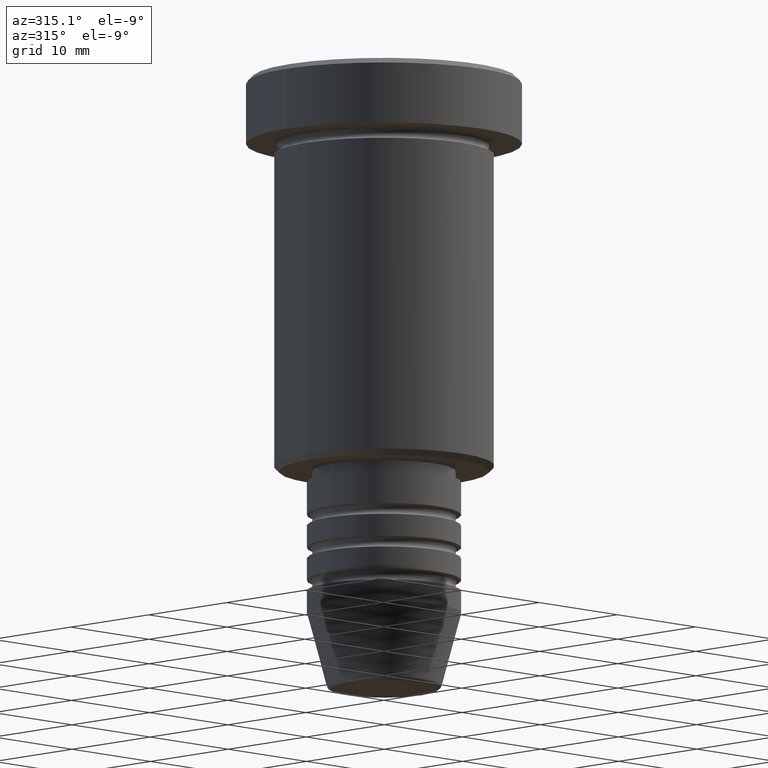
[diagram: clean part render]
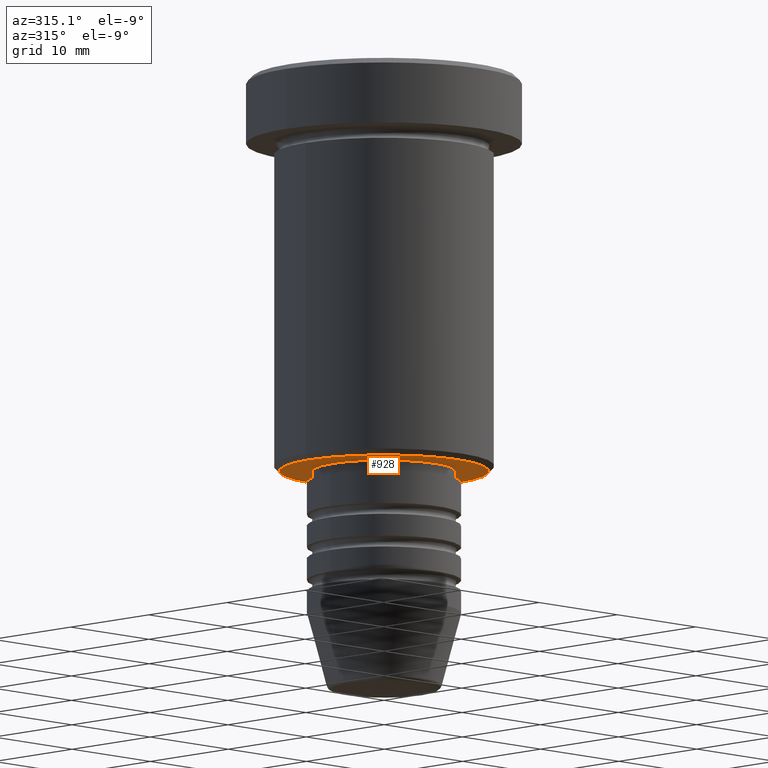
[diagram: same view with one face highlighted and labeled with its STEP entity id]
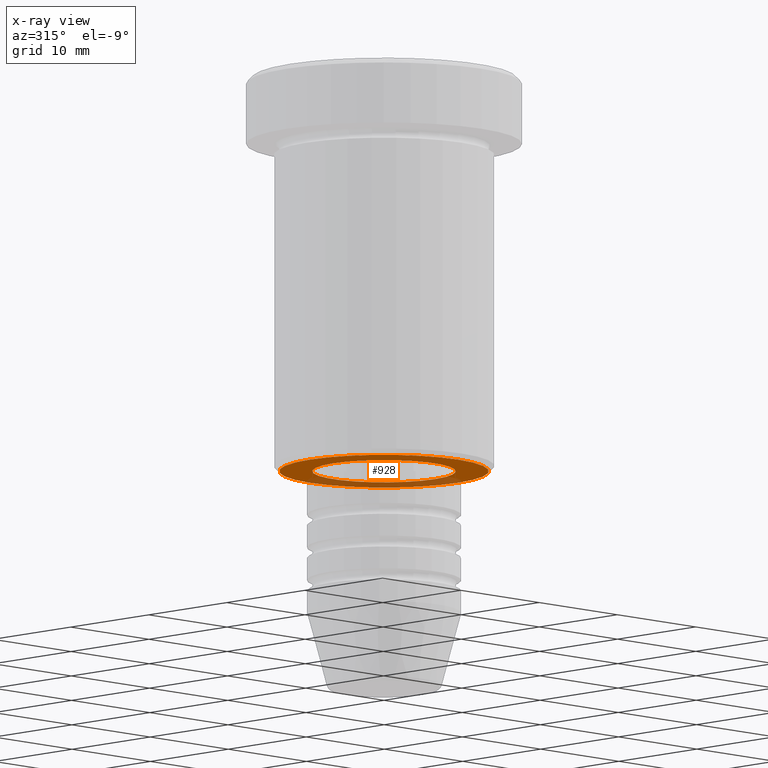
[diagram: x-ray of the same camera — body ghosted, the highlighted face saturated]
A machine part, auxiliary view. The second image highlights one B-rep face of the part: STEP entity #928.
The next image is the same camera in x-ray: the body ghosted, the highlighted face saturated — about 31% of this face is hidden behind the body in this view.
In plain terms, the highlighted planar face has unit normal (0, 0, -1).
Its self-contained STEP definition (entity closure, byte-faithful):
#31 = CARTESIAN_POINT ( 'NONE',  ( 9.500000000000008882, 0.000000000000000000, -36.00000000000000000 ) ) ;
#77 = DIRECTION ( 'NONE',  ( 0.000000000000000000, 0.000000000000000000, -1.000000000000000000 ) ) ;
#90 = DIRECTION ( 'NONE',  ( -0.000000000000000000, -0.000000000000000000, 1.000000000000000000 ) ) ;
#105 = DIRECTION ( 'NONE',  ( 0.000000000000000000, 0.000000000000000000, -1.000000000000000000 ) ) ;
#107 = CIRCLE ( 'NONE', #532, 6.500000000000000000 ) ;
#157 = ORIENTED_EDGE ( 'NONE', *, *, #1032, .T. ) ;
#158 = CARTESIAN_POINT ( 'NONE',  ( -6.500000000000000000, 7.960204194457795477E-16, -36.00000000000000000 ) ) ;
#192 = CARTESIAN_POINT ( 'NONE',  ( 0.000000000000000000, 0.000000000000000000, -36.00000000000000000 ) ) ;
#237 = AXIS2_PLACEMENT_3D ( 'NONE', #192, #105, #472 ) ;
#276 = DIRECTION ( 'NONE',  ( 1.000000000000000000, 0.000000000000000000, 0.000000000000000000 ) ) ;
#318 = EDGE_CURVE ( 'NONE', #361, #332, #387, .T. ) ;
#332 = VERTEX_POINT ( 'NONE', #582 ) ;
#359 = CARTESIAN_POINT ( 'NONE',  ( 0.000000000000000000, 0.000000000000000000, -36.00000000000000000 ) ) ;
#361 = VERTEX_POINT ( 'NONE', #31 ) ;
#387 = CIRCLE ( 'NONE', #896, 9.500000000000008882 ) ;
#389 = EDGE_LOOP ( 'NONE', ( #1148, #476 ) ) ;
#424 = VERTEX_POINT ( 'NONE', #1006 ) ;
#462 = CARTESIAN_POINT ( 'NONE',  ( 0.000000000000000000, 0.000000000000000000, -36.00000000000000000 ) ) ;
#472 = DIRECTION ( 'NONE',  ( -1.000000000000000000, 0.000000000000000000, 0.000000000000000000 ) ) ;
#476 = ORIENTED_EDGE ( 'NONE', *, *, #1114, .T. ) ;
#494 = EDGE_LOOP ( 'NONE', ( #157, #571 ) ) ;
#524 = DIRECTION ( 'NONE',  ( 0.000000000000000000, 0.000000000000000000, -1.000000000000000000 ) ) ;
#532 = AXIS2_PLACEMENT_3D ( 'NONE', #462, #90, #276 ) ;
#535 = DIRECTION ( 'NONE',  ( -1.000000000000000000, 0.000000000000000000, -0.000000000000000000 ) ) ;
#571 = ORIENTED_EDGE ( 'NONE', *, *, #1039, .T. ) ;
#582 = CARTESIAN_POINT ( 'NONE',  ( -9.500000000000008882, 1.194030629168669864E-15, -36.00000000000000000 ) ) ;
#589 = CIRCLE ( 'NONE', #237, 9.500000000000008882 ) ;
#704 = CARTESIAN_POINT ( 'NONE',  ( 0.000000000000000000, 0.000000000000000000, -36.00000000000000000 ) ) ;
#718 = FACE_BOUND ( 'NONE', #494, .T. ) ;
#739 = DIRECTION ( 'NONE',  ( 1.000000000000000000, 0.000000000000000000, 0.000000000000000000 ) ) ;
#798 = FACE_OUTER_BOUND ( 'NONE', #389, .T. ) ;
#896 = AXIS2_PLACEMENT_3D ( 'NONE', #704, #77, #1167 ) ;
#928 = ADVANCED_FACE ( 'NONE', ( #798, #718 ), #1153, .T. ) ;
#938 = VERTEX_POINT ( 'NONE', #158 ) ;
#977 = CIRCLE ( 'NONE', #1024, 6.500000000000000000 ) ;
#988 = CARTESIAN_POINT ( 'NONE',  ( 0.000000000000000000, 10.00000000000000000, -36.00000000000000000 ) ) ;
#1006 = CARTESIAN_POINT ( 'NONE',  ( 6.500000000000000000, 0.000000000000000000, -36.00000000000000000 ) ) ;
#1019 = DIRECTION ( 'NONE',  ( -0.000000000000000000, -0.000000000000000000, 1.000000000000000000 ) ) ;
#1023 = AXIS2_PLACEMENT_3D ( 'NONE', #988, #524, #535 ) ;
#1024 = AXIS2_PLACEMENT_3D ( 'NONE', #359, #1019, #739 ) ;
#1032 = EDGE_CURVE ( 'NONE', #424, #938, #977, .T. ) ;
#1039 = EDGE_CURVE ( 'NONE', #938, #424, #107, .T. ) ;
#1114 = EDGE_CURVE ( 'NONE', #332, #361, #589, .T. ) ;
#1148 = ORIENTED_EDGE ( 'NONE', *, *, #318, .T. ) ;
#1153 = PLANE ( 'NONE',  #1023 ) ;
#1167 = DIRECTION ( 'NONE',  ( -1.000000000000000000, 0.000000000000000000, 0.000000000000000000 ) ) ;